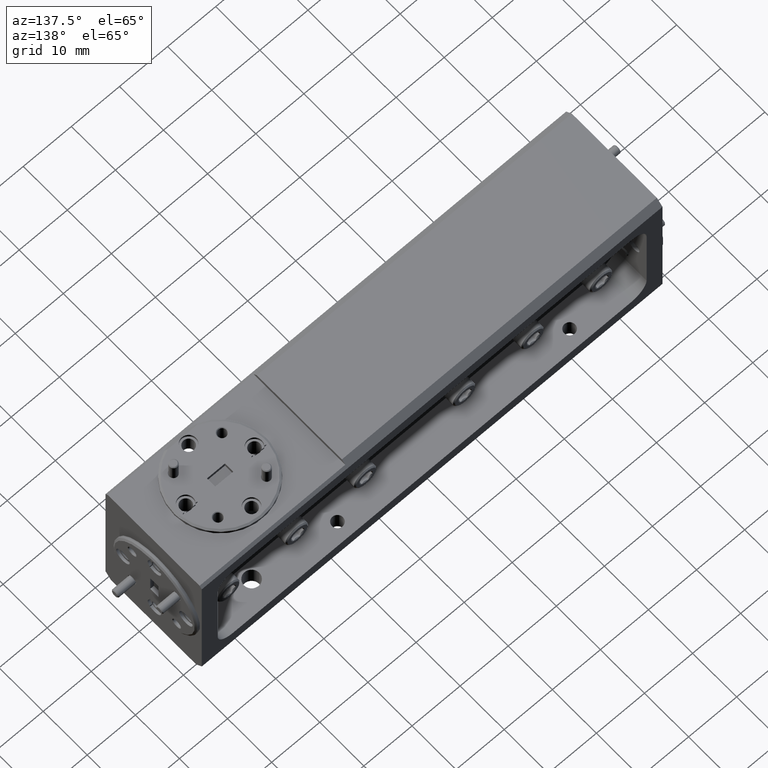
[diagram: clean part render]
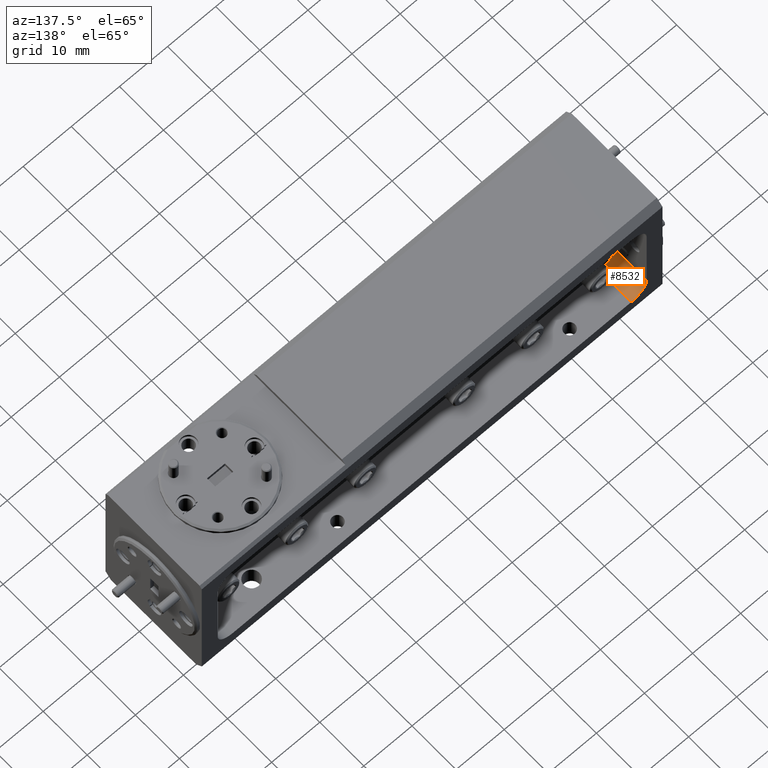
[diagram: same view with one face highlighted and labeled with its STEP entity id]
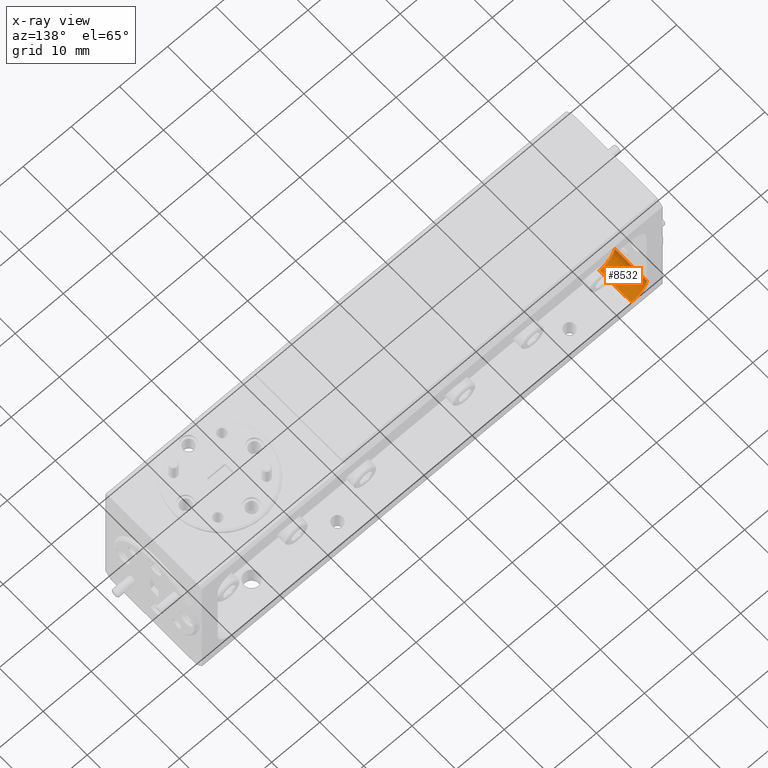
[diagram: x-ray of the same camera — body ghosted, the highlighted face saturated]
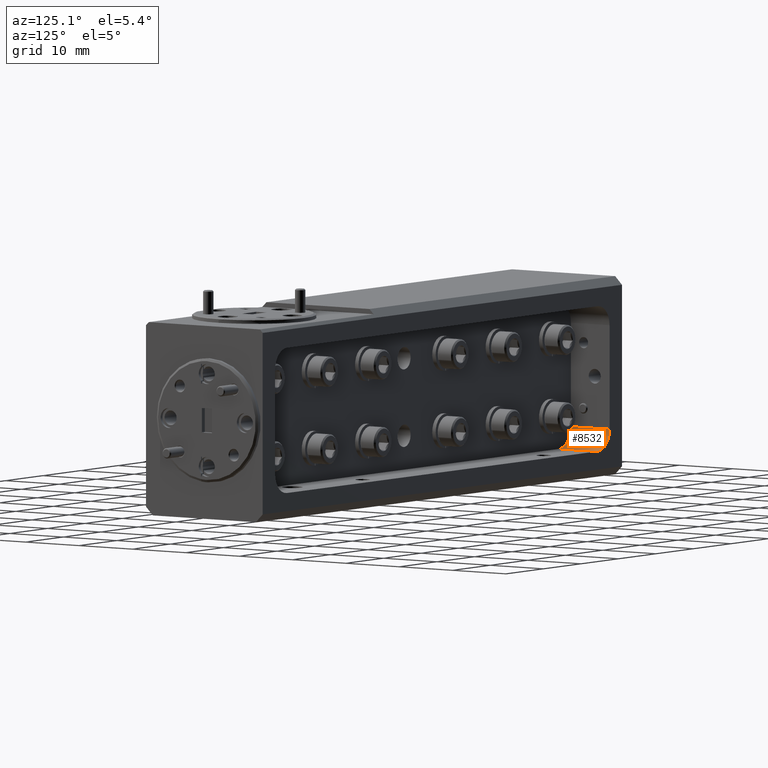
[diagram: same view with one face highlighted and labeled with its STEP entity id]
A machine part, auxiliary view. The second image highlights one B-rep face of the part: STEP entity #8532.
The next image is the same camera in x-ray: the body ghosted, the highlighted face saturated — about 1% of this face is hidden behind the body in this view.
A second angle (auxiliary view) of the same face is appended — the face is thin or edge-on in the first view.
In plain terms, the highlighted cylindrical surface (edge-blend (fillet) strip) has radius 3.175 mm, axis along (0, -1, -0).
Its self-contained STEP definition (entity closure, byte-faithful):
#71 = LINE ( 'NONE', #6107, #5200 ) ;
#641 = VERTEX_POINT ( 'NONE', #7810 ) ;
#1298 = DIRECTION ( 'NONE',  ( -0.0000000000000000000, 1.000000000000000000, -0.0000000000000000000 ) ) ;
#2070 = EDGE_CURVE ( 'NONE', #641, #6845, #2084, .T. ) ;
#2084 = LINE ( 'NONE', #14413, #7120 ) ;
#2175 = EDGE_LOOP ( 'NONE', ( #7971, #19785, #13171, #10438 ) ) ;
#2646 = FACE_OUTER_BOUND ( 'NONE', #2175, .T. ) ;
#2990 = DIRECTION ( 'NONE',  ( -0.0000000000000000000, 1.000000000000000000, 0.0000000000000000000 ) ) ;
#3233 = AXIS2_PLACEMENT_3D ( 'NONE', #12105, #1298, #10493 ) ;
#5200 = VECTOR ( 'NONE', #2990, 39.37007874015748143 ) ;
#5665 = DIRECTION ( 'NONE',  ( -0.0000000000000000000, -1.000000000000000000, -0.0000000000000000000 ) ) ;
#6107 = CARTESIAN_POINT ( 'NONE',  ( -1.755000000000000560, 0.8600000000000000977, -0.3150000000000001688 ) ) ;
#6845 = VERTEX_POINT ( 'NONE', #14895 ) ;
#7081 = CARTESIAN_POINT ( 'NONE',  ( -1.755000000000000560, 0.8600000000000000977, -0.3150000000000001688 ) ) ;
#7120 = VECTOR ( 'NONE', #7886, 39.37007874015748143 ) ;
#7225 = VERTEX_POINT ( 'NONE', #7081 ) ;
#7810 = CARTESIAN_POINT ( 'NONE',  ( -1.630000000000000338, 0.8600000000000000977, -0.4400000000000001688 ) ) ;
#7886 = DIRECTION ( 'NONE',  ( -0.0000000000000000000, -1.000000000000000000, -0.0000000000000000000 ) ) ;
#7971 = ORIENTED_EDGE ( 'NONE', *, *, #13083, .F. ) ;
#8532 = ADVANCED_FACE ( 'NONE', ( #2646 ), #18089, .F. ) ;
#8802 = DIRECTION ( 'NONE',  ( 0.0000000000000000000, -1.000000000000000000, -0.0000000000000000000 ) ) ;
#9044 = CIRCLE ( 'NONE', #3233, 0.1250000000000000278 ) ;
#10438 = ORIENTED_EDGE ( 'NONE', *, *, #12768, .F. ) ;
#10493 = DIRECTION ( 'NONE',  ( 0.0000000000000000000, 0.0000000000000000000, -1.000000000000000000 ) ) ;
#10627 = CARTESIAN_POINT ( 'NONE',  ( -1.630000000000000560, 0.8600000000000000977, -0.3150000000000001688 ) ) ;
#10930 = EDGE_CURVE ( 'NONE', #7225, #641, #14120, .T. ) ;
#11469 = CARTESIAN_POINT ( 'NONE',  ( -1.755000000000000560, 0.5750000000000000666, -0.3150000000000001688 ) ) ;
#12105 = CARTESIAN_POINT ( 'NONE',  ( -1.630000000000000560, 0.5750000000000000666, -0.3150000000000001688 ) ) ;
#12768 = EDGE_CURVE ( 'NONE', #13420, #7225, #71, .T. ) ;
#13083 = EDGE_CURVE ( 'NONE', #6845, #13420, #9044, .T. ) ;
#13171 = ORIENTED_EDGE ( 'NONE', *, *, #10930, .F. ) ;
#13420 = VERTEX_POINT ( 'NONE', #11469 ) ;
#14120 = CIRCLE ( 'NONE', #17964, 0.1250000000000000000 ) ;
#14413 = CARTESIAN_POINT ( 'NONE',  ( -1.630000000000000560, 0.5750000000000000666, -0.4400000000000001688 ) ) ;
#14769 = CARTESIAN_POINT ( 'NONE',  ( -1.630000000000000560, 0.5750000000000000666, -0.3150000000000001688 ) ) ;
#14895 = CARTESIAN_POINT ( 'NONE',  ( -1.630000000000000338, 0.5750000000000000666, -0.4400000000000001688 ) ) ;
#14970 = DIRECTION ( 'NONE',  ( 0.0000000000000000000, 0.0000000000000000000, -1.000000000000000000 ) ) ;
#15266 = DIRECTION ( 'NONE',  ( 0.0000000000000000000, 0.0000000000000000000, 1.000000000000000000 ) ) ;
#16946 = AXIS2_PLACEMENT_3D ( 'NONE', #14769, #8802, #14970 ) ;
#17964 = AXIS2_PLACEMENT_3D ( 'NONE', #10627, #5665, #15266 ) ;
#18089 = CYLINDRICAL_SURFACE ( 'NONE', #16946, 0.1250000000000000278 ) ;
#19785 = ORIENTED_EDGE ( 'NONE', *, *, #2070, .F. ) ;